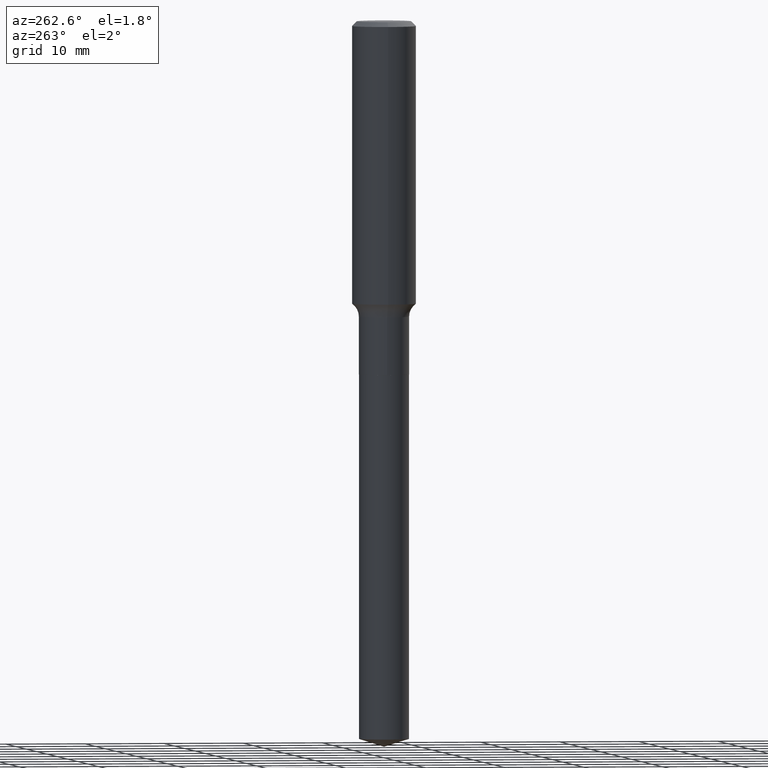
[diagram: clean part render]
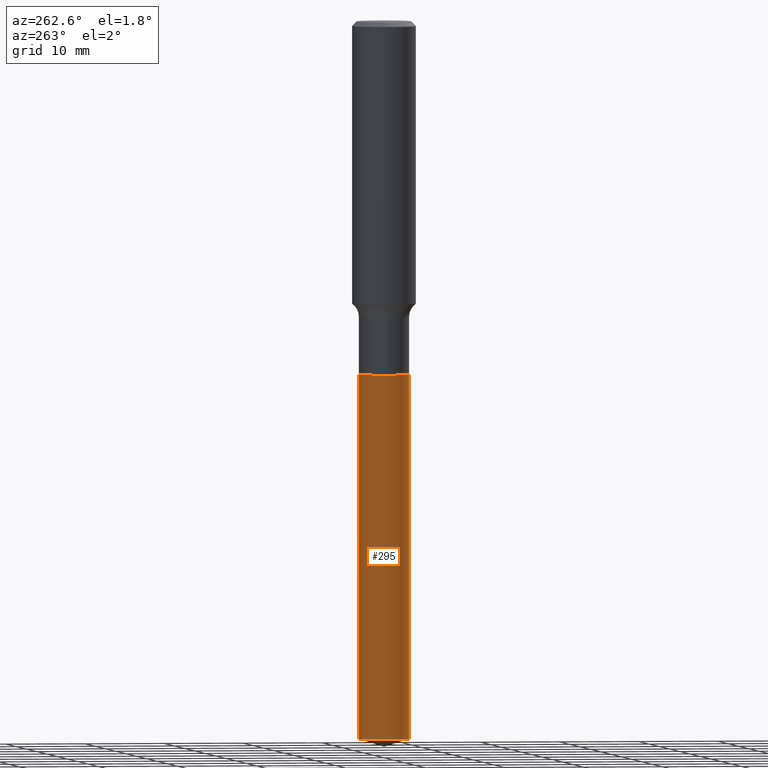
[diagram: same view with one face highlighted and labeled with its STEP entity id]
A machine part, auxiliary view. The second image highlights one B-rep face of the part: STEP entity #295.
In plain terms, the highlighted cylindrical surface (edge-blend (fillet) strip) has radius 3.1496 mm, axis along (-0, 0, 1).
Its self-contained STEP definition (entity closure, byte-faithful):
#41 = VERTEX_POINT ( 'NONE', #92 ) ;
#61 = AXIS2_PLACEMENT_3D ( 'NONE', #73, #316, #418 ) ;
#66 = DIRECTION ( 'NONE',  ( -2.445500008357157886E-29, 3.491436655556893596E-15, 1.000000000000000000 ) ) ;
#73 = CARTESIAN_POINT ( 'NONE',  ( 8.665826624568987053E-29, -1.237234316511408232E-14, -3.543602950179006061 ) ) ;
#75 = ORIENTED_EDGE ( 'NONE', *, *, #423, .F. ) ;
#92 = CARTESIAN_POINT ( 'NONE',  ( -8.658873720330101554E-16, -0.1240000000000123503, -3.543602950179005617 ) ) ;
#96 = CARTESIAN_POINT ( 'NONE',  ( -8.658873720330542330E-16, -0.1240000000000060915, -1.744099999999999540 ) ) ;
#121 = DIRECTION ( 'NONE',  ( -2.445500008357157886E-29, 3.491436655556893596E-15, 1.000000000000000000 ) ) ;
#124 = CIRCLE ( 'NONE', #131, 0.1239999999999999991 ) ;
#126 = EDGE_LOOP ( 'NONE', ( #319, #258, #160, #75 ) ) ;
#131 = AXIS2_PLACEMENT_3D ( 'NONE', #308, #180, #343 ) ;
#160 = ORIENTED_EDGE ( 'NONE', *, *, #186, .T. ) ;
#180 = DIRECTION ( 'NONE',  ( -2.445500008357157886E-29, 3.491436655556893596E-15, 1.000000000000000000 ) ) ;
#186 = EDGE_CURVE ( 'NONE', #41, #276, #364, .T. ) ;
#188 = FACE_OUTER_BOUND ( 'NONE', #126, .T. ) ;
#190 = VERTEX_POINT ( 'NONE', #402 ) ;
#221 = CYLINDRICAL_SURFACE ( 'NONE', #400, 0.1239999999999999991 ) ;
#232 = DIRECTION ( 'NONE',  ( -6.982962677686265922E-15, -1.000000000000000000, 4.406206441393973340E-15 ) ) ;
#258 = ORIENTED_EDGE ( 'NONE', *, *, #401, .T. ) ;
#276 = VERTEX_POINT ( 'NONE', #305 ) ;
#290 = CARTESIAN_POINT ( 'NONE',  ( 8.810729923425668227E-16, 0.1239999999999939068, -1.744100000000000650 ) ) ;
#295 = ADVANCED_FACE ( 'NONE', ( #188 ), #221, .T. ) ;
#305 = CARTESIAN_POINT ( 'NONE',  ( -8.658873720330542330E-16, -0.1240000000000060915, -1.744099999999999540 ) ) ;
#308 = CARTESIAN_POINT ( 'NONE',  ( 4.265142144867497014E-29, -6.089492603076330929E-15, -1.744100000000000206 ) ) ;
#313 = VERTEX_POINT ( 'NONE', #318 ) ;
#316 = DIRECTION ( 'NONE',  ( -2.445500008357157886E-29, 3.491436655556893596E-15, 1.000000000000000000 ) ) ;
#318 = CARTESIAN_POINT ( 'NONE',  ( 8.810729923426110975E-16, 0.1239999999999939068, -1.744100000000000650 ) ) ;
#319 = ORIENTED_EDGE ( 'NONE', *, *, #392, .F. ) ;
#322 = VECTOR ( 'NONE', #447, 39.37007874015748143 ) ;
#324 = VECTOR ( 'NONE', #66, 39.37007874015748143 ) ;
#343 = DIRECTION ( 'NONE',  ( -6.982962677686265922E-15, -1.000000000000000000, 4.406206441393973340E-15 ) ) ;
#364 = LINE ( 'NONE', #96, #322 ) ;
#379 = LINE ( 'NONE', #290, #324 ) ;
#381 = CARTESIAN_POINT ( 'NONE',  ( 4.265142144867497014E-29, -6.089492603076330929E-15, -1.744100000000000206 ) ) ;
#392 = EDGE_CURVE ( 'NONE', #190, #313, #379, .T. ) ;
#400 = AXIS2_PLACEMENT_3D ( 'NONE', #381, #121, #232 ) ;
#401 = EDGE_CURVE ( 'NONE', #190, #41, #435, .T. ) ;
#402 = CARTESIAN_POINT ( 'NONE',  ( 8.810729923426106044E-16, 0.1239999999999875785, -3.543602950179006950 ) ) ;
#418 = DIRECTION ( 'NONE',  ( -6.982962677686265922E-15, -1.000000000000000000, 4.406206441393973340E-15 ) ) ;
#423 = EDGE_CURVE ( 'NONE', #313, #276, #124, .T. ) ;
#435 = CIRCLE ( 'NONE', #61, 0.1239999999999999991 ) ;
#447 = DIRECTION ( 'NONE',  ( -2.445500008357157886E-29, 3.491436655556893596E-15, 1.000000000000000000 ) ) ;